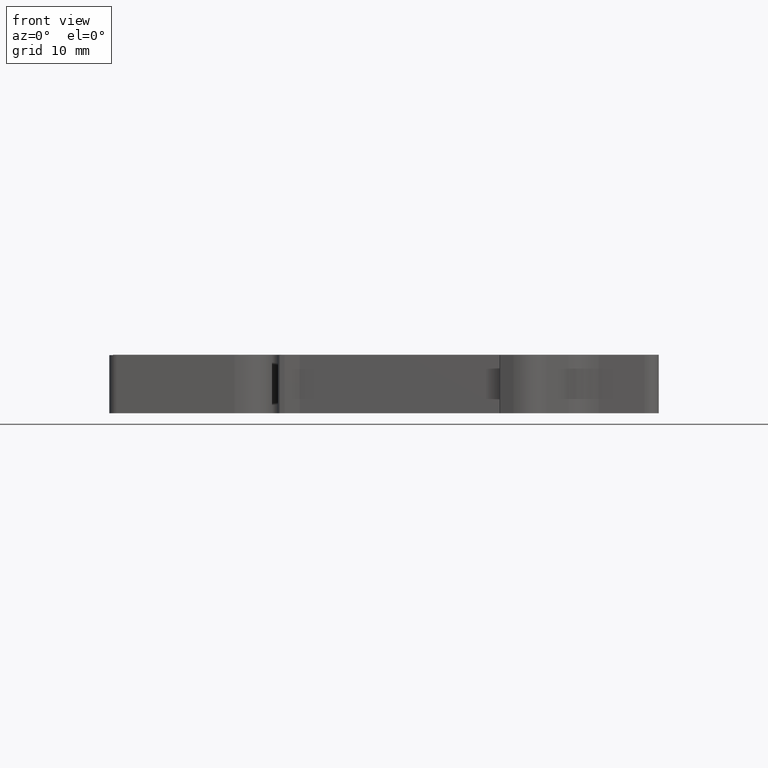
[diagram: clean part render]
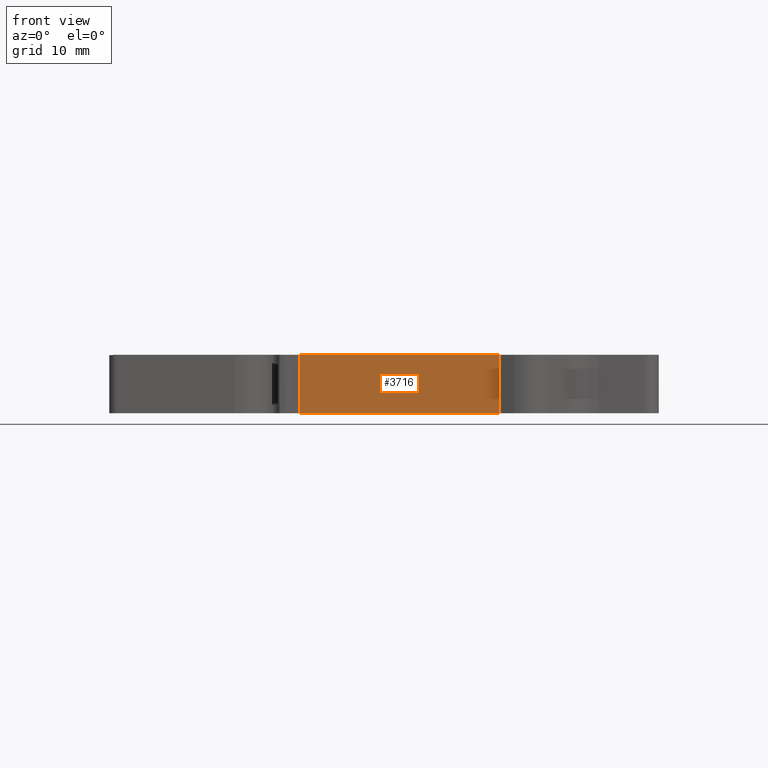
[diagram: same view with one face highlighted and labeled with its STEP entity id]
A machine part, front view. The second image highlights one B-rep face of the part: STEP entity #3716.
In plain terms, the highlighted planar face has unit normal (-0, -1, 0).
Its self-contained STEP definition (entity closure, byte-faithful):
#1351 = VERTEX_POINT ( 'NONE', #24162 ) ;
#1435 = VERTEX_POINT ( 'NONE', #24258 ) ;
#1741 = EDGE_LOOP ( 'NONE', ( #26384, #26364, #26396, #26347 ) ) ;
#2582 = EDGE_CURVE ( 'NONE', #23721, #23706, #15834, .T. ) ;
#2598 = EDGE_CURVE ( 'NONE', #1435, #23706, #15890, .T. ) ;
#2610 = EDGE_CURVE ( 'NONE', #1351, #23721, #15905, .T. ) ;
#3716 = ADVANCED_FACE ( 'NONE', ( #9106 ), #9109, .T. ) ;
#7531 = VECTOR ( 'NONE', #15898, 1000.000000000000000 ) ;
#7532 = VECTOR ( 'NONE', #15861, 1000.000000000000100 ) ;
#7594 = VECTOR ( 'NONE', #15923, 1000.000000000000000 ) ;
#9106 = FACE_OUTER_BOUND ( 'NONE', #1741, .T. ) ;
#9109 = PLANE ( 'NONE',  #17886 ) ;
#9126 = CARTESIAN_POINT ( 'NONE',  ( 3.851939657711939800E-005, 993.6236977712159200, -77.36787831948760200 ) ) ;
#9175 = DIRECTION ( 'NONE',  ( -3.876658403329316500E-008, -0.9999999999999992200, 0.0000000000000000000 ) ) ;
#9182 = DIRECTION ( 'NONE',  ( 0.9999999999999992200, -3.876658403329316500E-008, 0.0000000000000000000 ) ) ;
#10808 = CARTESIAN_POINT ( 'NONE',  ( 1496.214846224859900, 993.6236397680779600, 8.050000000000000700 ) ) ;
#10897 = CARTESIAN_POINT ( 'NONE',  ( 1524.540336881020000, 993.6236386699959000, 8.050000000000000700 ) ) ;
#12798 = EDGE_CURVE ( 'NONE', #1435, #1351, #23035, .T. ) ;
#15834 = LINE ( 'NONE', #15854, #7532 ) ;
#15850 = CARTESIAN_POINT ( 'NONE',  ( 1524.540336881020000, 993.6236386699959000, -77.36787831948760200 ) ) ;
#15854 = CARTESIAN_POINT ( 'NONE',  ( 3.851939657711939800E-005, 993.6236977712150100, 8.050000000000000700 ) ) ;
#15861 = DIRECTION ( 'NONE',  ( 0.9999999999999992200, -3.876658403329316500E-008, 0.0000000000000000000 ) ) ;
#15890 = LINE ( 'NONE', #15850, #7531 ) ;
#15898 = DIRECTION ( 'NONE',  ( 0.0000000000000000000, 0.0000000000000000000, 1.000000000000000000 ) ) ;
#15905 = LINE ( 'NONE', #15912, #7594 ) ;
#15912 = CARTESIAN_POINT ( 'NONE',  ( 1496.214846224859900, 993.6236397680779600, -77.36787831948760200 ) ) ;
#15923 = DIRECTION ( 'NONE',  ( 0.0000000000000000000, 0.0000000000000000000, 1.000000000000000000 ) ) ;
#17886 = AXIS2_PLACEMENT_3D ( 'NONE', #9126, #9175, #9182 ) ;
#19102 = VECTOR ( 'NONE', #23039, 1000.000000000000100 ) ;
#23035 = LINE ( 'NONE', #23048, #19102 ) ;
#23039 = DIRECTION ( 'NONE',  ( -0.9999999999999992200, 3.876658403329316500E-008, 0.0000000000000000000 ) ) ;
#23048 = CARTESIAN_POINT ( 'NONE',  ( 1537.601468233190000, 993.6236381636609800, 1.355252715606880100E-017 ) ) ;
#23706 = VERTEX_POINT ( 'NONE', #10897 ) ;
#23721 = VERTEX_POINT ( 'NONE', #10808 ) ;
#24162 = CARTESIAN_POINT ( 'NONE',  ( 1496.214846224859900, 993.6236397680779600, 0.0000000000000000000 ) ) ;
#24258 = CARTESIAN_POINT ( 'NONE',  ( 1524.540336881020000, 993.6236386699959000, 0.0000000000000000000 ) ) ;
#26347 = ORIENTED_EDGE ( 'NONE', *, *, #2582, .F. ) ;
#26364 = ORIENTED_EDGE ( 'NONE', *, *, #12798, .F. ) ;
#26384 = ORIENTED_EDGE ( 'NONE', *, *, #2610, .F. ) ;
#26396 = ORIENTED_EDGE ( 'NONE', *, *, #2598, .T. ) ;